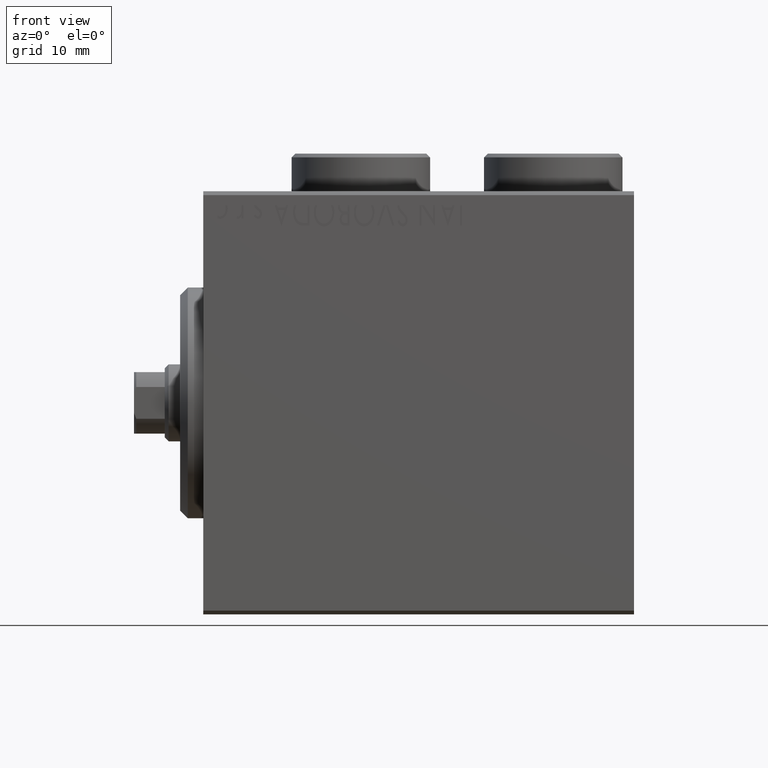
[diagram: clean part render]
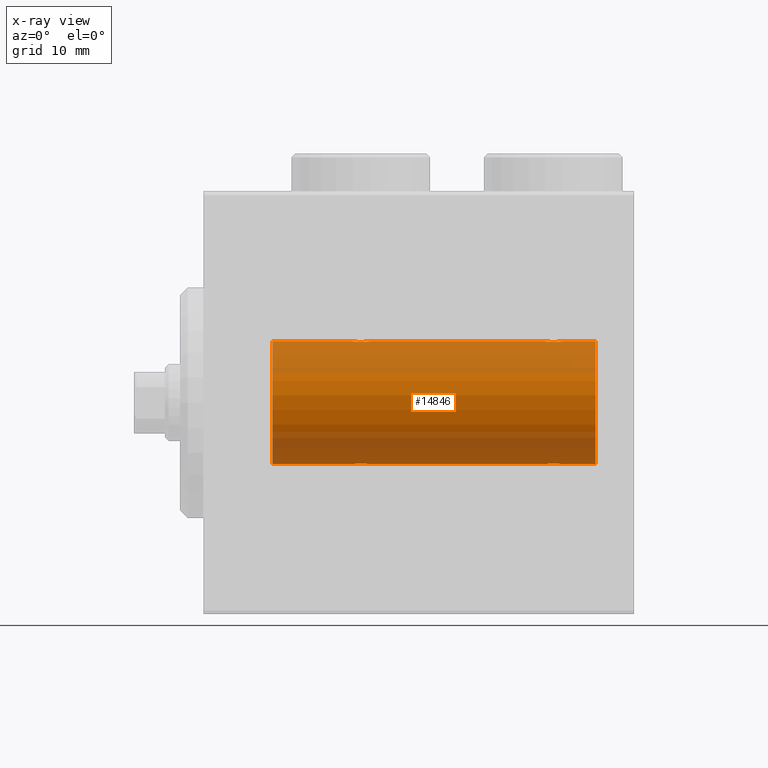
[diagram: x-ray — body ghosted, one internal face saturated and labeled with its STEP entity id]
A machine part, front view, then the same camera in x-ray: the body is ghosted and one INTERNAL B-rep face — a face not visible from any outside direction — is saturated and labeled: STEP entity #14846.
In plain terms, the highlighted cylindrical surface (partial cylindrical patch) has radius 8 mm, axis along (-1, -0, -0).
Its self-contained STEP definition (entity closure, byte-faithful):
#329 = AXIS2_PLACEMENT_3D ( 'NONE', #32023, #21646, #35716 ) ;
#395 = ORIENTED_EDGE ( 'NONE', *, *, #38197, .T. ) ;
#756 = ORIENTED_EDGE ( 'NONE', *, *, #18101, .T. ) ;
#1104 = CARTESIAN_POINT ( 'NONE',  ( 44.50041313324088321, -0.7680324342712147034, 7.963892330120037499 ) ) ;
#1177 = CARTESIAN_POINT ( 'NONE',  ( 21.75000000000000355, -5.238855365914187376E-16, 7.999999999999998224 ) ) ;
#1184 = FACE_OUTER_BOUND ( 'NONE', #5843, .T. ) ;
#2213 = ORIENTED_EDGE ( 'NONE', *, *, #26167, .T. ) ;
#2395 = CARTESIAN_POINT ( 'NONE',  ( 19.40834966532100481, -0.6303134207467991912, -7.976551562999473433 ) ) ;
#2819 = CARTESIAN_POINT ( 'NONE',  ( 45.33559448851095652, -1.250104850332078854, -7.901723728054487417 ) ) ;
#2835 = CARTESIAN_POINT ( 'NONE',  ( 51.00000000000000711, 0.000000000000000000, 7.999999999999998224 ) ) ;
#3040 = CARTESIAN_POINT ( 'NONE',  ( 46.49958686675912389, -0.7680324342712128161, -7.963892330120035723 ) ) ;
#3258 = CARTESIAN_POINT ( 'NONE',  ( 44.25000000000000711, -5.932357478216049125E-15, -7.999999999999998224 ) ) ;
#3297 = CARTESIAN_POINT ( 'NONE',  ( 20.17169333885885862, -1.217212176555599878, 7.907113222863031865 ) ) ;
#3329 = AXIS2_PLACEMENT_3D ( 'NONE', #26654, #5743, #37049 ) ;
#4205 = CARTESIAN_POINT ( 'NONE',  ( 19.25000000000000000, -4.052102368803510290E-23, 7.999999999999998224 ) ) ;
#4667 = VECTOR ( 'NONE', #39493, 1000.000000000000000 ) ;
#4731 = CARTESIAN_POINT ( 'NONE',  ( 46.74999999999999289, 9.797173987957720246E-16, -7.999999999999998224 ) ) ;
#4777 = CARTESIAN_POINT ( 'NONE',  ( 46.12943792732229298, -1.092287957405115639, 7.925333492638530153 ) ) ;
#5006 = CARTESIAN_POINT ( 'NONE',  ( 45.82701716371747125, -1.217515856520235973, 7.907063872927300174 ) ) ;
#5743 = DIRECTION ( 'NONE',  ( -1.000000000000000000, 0.000000000000000000, 0.000000000000000000 ) ) ;
#5843 = EDGE_LOOP ( 'NONE', ( #34942, #29986, #2213, #40958, #38682, #8151, #756, #12341, #395, #11331, #38171, #26855 ) ) ;
#5965 = DIRECTION ( 'NONE',  ( -1.000000000000000000, -0.000000000000000000, -0.000000000000000000 ) ) ;
#6191 = VECTOR ( 'NONE', #27196, 1000.000000000000000 ) ;
#6379 = EDGE_CURVE ( 'NONE', #19560, #33014, #15137, .T. ) ;
#6492 = CARTESIAN_POINT ( 'NONE',  ( 44.25000000000002132, -0.1654128203352934201, -7.999999999999998224 ) ) ;
#6533 = CARTESIAN_POINT ( 'NONE',  ( 19.87056207267771413, -1.092287957405118970, -7.925333492638526600 ) ) ;
#6748 = CARTESIAN_POINT ( 'NONE',  ( 19.73732994206309499, -0.9937204387496718638, 7.938174152191987076 ) ) ;
#6984 = CARTESIAN_POINT ( 'NONE',  ( 21.26815485876451461, -0.9994562523959116263, 7.938165420771274405 ) ) ;
#7436 = CARTESIAN_POINT ( 'NONE',  ( 20.66440551148902571, -1.250104850332075523, 7.901723728054487417 ) ) ;
#8022 = CARTESIAN_POINT ( 'NONE',  ( 44.73732994206308433, -0.9937204387496696434, 7.938174152191987076 ) ) ;
#8151 = ORIENTED_EDGE ( 'NONE', *, *, #6379, .T. ) ;
#9201 = CARTESIAN_POINT ( 'NONE',  ( 51.00000000000000711, 9.797174393178823685E-16, -7.999999999999998224 ) ) ;
#9335 = LINE ( 'NONE', #13914, #28998 ) ;
#9537 = CARTESIAN_POINT ( 'NONE',  ( 20.66599605016009988, -1.249894643705219854, -7.901756981264366431 ) ) ;
#9716 = CARTESIAN_POINT ( 'NONE',  ( 46.59250917855270302, -0.6288424646912637028, -7.976670562295706368 ) ) ;
#10173 = CARTESIAN_POINT ( 'NONE',  ( 44.87056207267771413, -1.092287957405121634, -7.925333492638528377 ) ) ;
#10214 = CARTESIAN_POINT ( 'NONE',  ( 20.33559448851098850, -1.250104850332076634, -7.901723728054487417 ) ) ;
#10479 = VERTEX_POINT ( 'NONE', #11235 ) ;
#10694 = CIRCLE ( 'NONE', #3329, 7.999999999999998224 ) ;
#10891 = CARTESIAN_POINT ( 'NONE',  ( 21.75000000000000355, -5.238855365914187376E-16, 7.999999999999998224 ) ) ;
#11235 = CARTESIAN_POINT ( 'NONE',  ( 44.25000000000000711, -5.932357478216049125E-15, -7.999999999999998224 ) ) ;
#11331 = ORIENTED_EDGE ( 'NONE', *, *, #30730, .F. ) ;
#11691 = CARTESIAN_POINT ( 'NONE',  ( 46.75000000000000711, -0.1654128203352883963, 7.999999999999996447 ) ) ;
#11876 = EDGE_CURVE ( 'NONE', #29878, #20206, #38593, .T. ) ;
#12143 = CARTESIAN_POINT ( 'NONE',  ( 44.87285837165013902, -1.084361243153316945, 7.926301147147065684 ) ) ;
#12314 = CARTESIAN_POINT ( 'NONE',  ( 21.75000000000000355, 9.797173987965608855E-16, -7.999999999999998224 ) ) ;
#12341 = ORIENTED_EDGE ( 'NONE', *, *, #24601, .F. ) ;
#12398 = B_SPLINE_CURVE_WITH_KNOTS ( 'NONE', 3,
 ( #45544, #17665, #21568, #43675, #1104, #25253, #8022, #12143, #33074, #43229, #25478, #22021, #5006, #4777, #36082, #39319, #29160, #19026, #11691, #25699 ),
 .UNSPECIFIED., .F., .F.,
 ( 4, 2, 2, 2, 2, 2, 2, 2, 2, 4 ),
 ( 0.003914068143704962574, 0.004403205918210084668, 0.004892343692715206763, 0.005136912579967760871, 0.005381481467220314979, 0.005870619241725421461, 0.006359757016230529678, 0.006848894790735636159, 0.007338032565240744376, 0.007827170339745850858 ),
 .UNSPECIFIED. ) ;
#13577 = CARTESIAN_POINT ( 'NONE',  ( 19.25000000000000000, -4.052102368803510290E-23, 7.999999999999998224 ) ) ;
#13849 = CARTESIAN_POINT ( 'NONE',  ( 44.50158244334253510, -0.7695044314719126088, -7.963745725343517101 ) ) ;
#13883 = CARTESIAN_POINT ( 'NONE',  ( 19.25000000000000355, -0.1632520343443080724, 8.000000000000000000 ) ) ;
#13914 = CARTESIAN_POINT ( 'NONE',  ( 51.00000000000000711, 0.000000000000000000, 7.999999999999998224 ) ) ;
#14300 = CARTESIAN_POINT ( 'NONE',  ( 46.05544625654727042, -1.122809931695432972, -7.920878051565292566 ) ) ;
#14535 = CYLINDRICAL_SURFACE ( 'NONE', #329, 7.999999999999998224 ) ;
#14846 = ADVANCED_FACE ( 'NONE', ( #1184 ), #14535, .F. ) ;
#15137 = LINE ( 'NONE', #42765, #39049 ) ;
#15503 = EDGE_CURVE ( 'NONE', #16681, #43192, #9335, .T. ) ;
#15742 = CARTESIAN_POINT ( 'NONE',  ( 9.000000000000001776, 0.000000000000000000, 7.999999999999998224 ) ) ;
#16681 = VERTEX_POINT ( 'NONE', #29758 ) ;
#16691 = CARTESIAN_POINT ( 'NONE',  ( 46.75000000000000000, 2.184524186358155277E-16, 7.999999999999998224 ) ) ;
#16845 = CARTESIAN_POINT ( 'NONE',  ( 46.26267005793690146, -0.9937204387496705316, -7.938174152191988853 ) ) ;
#16886 = CARTESIAN_POINT ( 'NONE',  ( 19.28333392022813797, -0.3297258132310537104, -7.994620111903500970 ) ) ;
#17328 = CARTESIAN_POINT ( 'NONE',  ( 20.33400394983990722, -1.249894643705219410, 7.901756981264364654 ) ) ;
#17335 = CARTESIAN_POINT ( 'NONE',  ( 20.82830666114114848, -1.217212176555599434, -7.907113222863026536 ) ) ;
#17415 = CARTESIAN_POINT ( 'NONE',  ( 9.000000000000001776, 0.000000000000000000, 0.000000000000000000 ) ) ;
#17548 = CARTESIAN_POINT ( 'NONE',  ( 21.59165033467900940, -0.6303134207467971928, 7.976551562999473433 ) ) ;
#17665 = CARTESIAN_POINT ( 'NONE',  ( 44.25000000000000000, -0.1632520343443069621, 8.000000000000000000 ) ) ;
#17856 = DIRECTION ( 'NONE',  ( -1.000000000000000000, 0.000000000000000000, 0.000000000000000000 ) ) ;
#17943 = DIRECTION ( 'NONE',  ( -1.000000000000000000, -0.000000000000000000, -0.000000000000000000 ) ) ;
#18101 = EDGE_CURVE ( 'NONE', #33014, #44166, #41604, .T. ) ;
#18235 = CARTESIAN_POINT ( 'NONE',  ( 19.28284287980512346, -0.3279446529214878892, 7.994696267489722175 ) ) ;
#18603 = CARTESIAN_POINT ( 'NONE',  ( 44.25000000000000000, -4.052102368803510290E-23, 7.999999999999998224 ) ) ;
#18967 = CARTESIAN_POINT ( 'NONE',  ( 21.75000000000000355, -0.1632520343443068511, -7.999999999999998224 ) ) ;
#19026 = CARTESIAN_POINT ( 'NONE',  ( 46.71666607977186914, -0.3297258132310492140, 7.994620111903504522 ) ) ;
#19560 = VERTEX_POINT ( 'NONE', #20934 ) ;
#20206 = VERTEX_POINT ( 'NONE', #30590 ) ;
#20435 = CARTESIAN_POINT ( 'NONE',  ( 21.75000000000000355, 9.797173987965608855E-16, -7.999999999999998224 ) ) ;
#20444 = LINE ( 'NONE', #9201, #43033 ) ;
#20509 = CARTESIAN_POINT ( 'NONE',  ( 45.66599605016010344, -1.249894643705221853, -7.901756981264364654 ) ) ;
#20770 = CARTESIAN_POINT ( 'NONE',  ( 19.94455374345276155, -1.122809931695431640, 7.920878051565288125 ) ) ;
#20934 = CARTESIAN_POINT ( 'NONE',  ( 19.25000000000000711, -3.107364149877583097E-15, -7.999999999999998224 ) ) ;
#20999 = CARTESIAN_POINT ( 'NONE',  ( 21.49841755665748622, -0.7695044314719065026, 7.963745725343518878 ) ) ;
#21568 = CARTESIAN_POINT ( 'NONE',  ( 44.28284287980513056, -0.3279446529214851691, 7.994696267489722175 ) ) ;
#21646 = DIRECTION ( 'NONE',  ( -1.000000000000000000, -0.000000000000000000, -0.000000000000000000 ) ) ;
#22021 = CARTESIAN_POINT ( 'NONE',  ( 45.66440551148901505, -1.250104850332072859, 7.901723728054492746 ) ) ;
#22869 = CARTESIAN_POINT ( 'NONE',  ( 21.49958686675913810, -0.7680324342712174790, -7.963892330120039276 ) ) ;
#22928 = CARTESIAN_POINT ( 'NONE',  ( 9.000000000000001776, 9.797174393178823685E-16, -7.999999999999998224 ) ) ;
#23035 = VECTOR ( 'NONE', #17943, 1000.000000000000000 ) ;
#23068 = CARTESIAN_POINT ( 'NONE',  ( 51.00000000000000711, 9.797174393178823685E-16, -7.999999999999998224 ) ) ;
#24035 = VERTEX_POINT ( 'NONE', #20435 ) ;
#24416 = CARTESIAN_POINT ( 'NONE',  ( 44.28333392022813797, -0.3297258132310548762, -7.994620111903502746 ) ) ;
#24448 = CARTESIAN_POINT ( 'NONE',  ( 21.12943792732229298, -1.092287957405117194, 7.925333492638531929 ) ) ;
#24601 = EDGE_CURVE ( 'NONE', #40992, #44166, #24629, .T. ) ;
#24629 = LINE ( 'NONE', #38693, #23035 ) ;
#24664 = AXIS2_PLACEMENT_3D ( 'NONE', #17415, #17856, #35144 ) ;
#25253 = CARTESIAN_POINT ( 'NONE',  ( 44.67312100220858184, -0.9409612394163470173, 7.944680966683011825 ) ) ;
#25478 = CARTESIAN_POINT ( 'NONE',  ( 45.33400394983990367, -1.249894643705215858, 7.901756981264366431 ) ) ;
#25699 = CARTESIAN_POINT ( 'NONE',  ( 46.75000000000000000, 2.184524186358155277E-16, 7.999999999999998224 ) ) ;
#26167 = EDGE_CURVE ( 'NONE', #20206, #10479, #28149, .T. ) ;
#26321 = CARTESIAN_POINT ( 'NONE',  ( 21.59250917855271013, -0.6288424646912625926, -7.976670562295708145 ) ) ;
#26654 = CARTESIAN_POINT ( 'NONE',  ( 51.00000000000000711, 0.000000000000000000, 0.000000000000000000 ) ) ;
#26766 = CARTESIAN_POINT ( 'NONE',  ( 20.17298283628253230, -1.217515856520239970, -7.907063872927298398 ) ) ;
#26855 = ORIENTED_EDGE ( 'NONE', *, *, #15503, .F. ) ;
#27196 = DIRECTION ( 'NONE',  ( -1.000000000000000000, -0.000000000000000000, -0.000000000000000000 ) ) ;
#27859 = CARTESIAN_POINT ( 'NONE',  ( 46.12714162834986098, -1.084361243153318943, -7.926301147147065684 ) ) ;
#28086 = CARTESIAN_POINT ( 'NONE',  ( 44.40834966532099060, -0.6303134207468006345, -7.976551562999471656 ) ) ;
#28149 = B_SPLINE_CURVE_WITH_KNOTS ( 'NONE', 3,
 ( #4731, #45381, #31551, #9716, #3040, #34789, #16845, #27859, #14300, #31777, #20509, #2819, #41250, #10173, #34569, #13849, #28086, #24416, #6492, #3258 ),
 .UNSPECIFIED., .F., .F.,
 ( 4, 2, 2, 2, 2, 2, 2, 2, 2, 4 ),
 ( 0.003914068143704942625, 0.004403205918210042168, 0.004892343692715140843, 0.005136912579967698421, 0.005381481467220255999, 0.005870619241725370287, 0.006359757016230484575, 0.006848894790735598863, 0.007338032565240713151, 0.007827170339745828306 ),
 .UNSPECIFIED. ) ;
#28363 = CARTESIAN_POINT ( 'NONE',  ( 19.40749082144729343, -0.6288424646912649241, 7.976670562295706368 ) ) ;
#28764 = B_SPLINE_CURVE_WITH_KNOTS ( 'NONE', 3,
 ( #4205, #13883, #18235, #28363, #42189, #38515, #6748, #32284, #20770, #3297, #17328, #7436, #41956, #24448, #6984, #20999, #17548, #42421, #31583, #10891 ),
 .UNSPECIFIED., .F., .F.,
 ( 4, 2, 2, 2, 2, 2, 2, 2, 2, 4 ),
 ( 0.003914068143704968646, 0.004403205918210080332, 0.004892343692715191150, 0.005136912579967747861, 0.005381481467220303704, 0.005870619241725416257, 0.006359757016230527943, 0.006848894790735639629, 0.007338032565240751315, 0.007827170339745863001 ),
 .UNSPECIFIED. ) ;
#28998 = VECTOR ( 'NONE', #30940, 1000.000000000000000 ) ;
#29160 = CARTESIAN_POINT ( 'NONE',  ( 46.59165033467900230, -0.6303134207467945282, 7.976551562999473433 ) ) ;
#29758 = CARTESIAN_POINT ( 'NONE',  ( 51.00000000000000711, 0.000000000000000000, 7.999999999999998224 ) ) ;
#29878 = VERTEX_POINT ( 'NONE', #23068 ) ;
#29986 = ORIENTED_EDGE ( 'NONE', *, *, #11876, .T. ) ;
#30590 = CARTESIAN_POINT ( 'NONE',  ( 46.74999999999999289, 9.797173987957720246E-16, -7.999999999999998224 ) ) ;
#30730 = EDGE_CURVE ( 'NONE', #39001, #34794, #34588, .T. ) ;
#30917 = CARTESIAN_POINT ( 'NONE',  ( 21.05544625654724200, -1.122809931695431640, -7.920878051565290789 ) ) ;
#30940 = DIRECTION ( 'NONE',  ( -1.000000000000000000, -0.000000000000000000, -0.000000000000000000 ) ) ;
#31370 = CARTESIAN_POINT ( 'NONE',  ( 19.50158244334252089, -0.7695044314719098333, -7.963745725343515325 ) ) ;
#31551 = CARTESIAN_POINT ( 'NONE',  ( 46.71715712019487654, -0.3279446529214866679, -7.994696267489720398 ) ) ;
#31583 = CARTESIAN_POINT ( 'NONE',  ( 21.75000000000000711, -0.1654128203352884796, 8.000000000000001776 ) ) ;
#31777 = CARTESIAN_POINT ( 'NONE',  ( 45.82830666114114848, -1.217212176555600989, -7.907113222863030089 ) ) ;
#32023 = CARTESIAN_POINT ( 'NONE',  ( 51.00000000000000711, 0.000000000000000000, 0.000000000000000000 ) ) ;
#32284 = CARTESIAN_POINT ( 'NONE',  ( 19.87285837165014613, -1.084361243153319387, 7.926301147147063908 ) ) ;
#32656 = EDGE_CURVE ( 'NONE', #10479, #24035, #20444, .T. ) ;
#32682 = EDGE_CURVE ( 'NONE', #29878, #16681, #10694, .T. ) ;
#32876 = EDGE_CURVE ( 'NONE', #39001, #43192, #12398, .T. ) ;
#33014 = VERTEX_POINT ( 'NONE', #22928 ) ;
#33074 = CARTESIAN_POINT ( 'NONE',  ( 44.94455374345275800, -1.122809931695426311, 7.920878051565289901 ) ) ;
#33933 = CARTESIAN_POINT ( 'NONE',  ( 21.26267005793691212, -0.9937204387496720859, -7.938174152191990629 ) ) ;
#34569 = CARTESIAN_POINT ( 'NONE',  ( 44.73184514123551025, -0.9994562523959168443, -7.938165420771277958 ) ) ;
#34588 = LINE ( 'NONE', #2835, #6191 ) ;
#34789 = CARTESIAN_POINT ( 'NONE',  ( 46.32687899779141816, -0.9409612394163474614, -7.944680966683013601 ) ) ;
#34794 = VERTEX_POINT ( 'NONE', #1177 ) ;
#34942 = ORIENTED_EDGE ( 'NONE', *, *, #32682, .F. ) ;
#35144 = DIRECTION ( 'NONE',  ( 0.000000000000000000, 0.000000000000000000, 1.000000000000000000 ) ) ;
#35296 = B_SPLINE_CURVE_WITH_KNOTS ( 'NONE', 3,
 ( #12314, #18967, #43613, #26321, #22869, #36930, #33933, #41068, #30917, #17335, #9537, #10214, #26766, #6533, #38290, #31370, #2395, #16886, #41521, #44974 ),
 .UNSPECIFIED., .F., .F.,
 ( 4, 2, 2, 2, 2, 2, 2, 2, 2, 4 ),
 ( 0.003914068143704951298, 0.004403205918210062117, 0.004892343692715172936, 0.005136912579967725309, 0.005381481467220276815, 0.005870619241725390236, 0.006359757016230503657, 0.006848894790735617077, 0.007338032565240730498, 0.007827170339745843919 ),
 .UNSPECIFIED. ) ;
#35716 = DIRECTION ( 'NONE',  ( 0.000000000000000000, 0.000000000000000000, 1.000000000000000000 ) ) ;
#36082 = CARTESIAN_POINT ( 'NONE',  ( 46.26815485876451817, -0.9994562523959094058, 7.938165420771274405 ) ) ;
#36930 = CARTESIAN_POINT ( 'NONE',  ( 21.32687899779140750, -0.9409612394163509030, -7.944680966683015377 ) ) ;
#37049 = DIRECTION ( 'NONE',  ( 0.000000000000000000, 0.000000000000000000, 1.000000000000000000 ) ) ;
#38171 = ORIENTED_EDGE ( 'NONE', *, *, #32876, .T. ) ;
#38197 = EDGE_CURVE ( 'NONE', #40992, #34794, #28764, .T. ) ;
#38290 = CARTESIAN_POINT ( 'NONE',  ( 19.73184514123549249, -0.9994562523959139577, -7.938165420771276182 ) ) ;
#38515 = CARTESIAN_POINT ( 'NONE',  ( 19.67312100220859605, -0.9409612394163516802, 7.944680966683013601 ) ) ;
#38593 = LINE ( 'NONE', #42269, #4667 ) ;
#38682 = ORIENTED_EDGE ( 'NONE', *, *, #38865, .T. ) ;
#38693 = CARTESIAN_POINT ( 'NONE',  ( 51.00000000000000711, 0.000000000000000000, 7.999999999999998224 ) ) ;
#38865 = EDGE_CURVE ( 'NONE', #24035, #19560, #35296, .T. ) ;
#39001 = VERTEX_POINT ( 'NONE', #18603 ) ;
#39049 = VECTOR ( 'NONE', #43671, 1000.000000000000000 ) ;
#39319 = CARTESIAN_POINT ( 'NONE',  ( 46.49841755665749332, -0.7695044314719045042, 7.963745725343520654 ) ) ;
#39493 = DIRECTION ( 'NONE',  ( -1.000000000000000000, -0.000000000000000000, -0.000000000000000000 ) ) ;
#40958 = ORIENTED_EDGE ( 'NONE', *, *, #32656, .T. ) ;
#40992 = VERTEX_POINT ( 'NONE', #13577 ) ;
#41068 = CARTESIAN_POINT ( 'NONE',  ( 21.12714162834985387, -1.084361243153318721, -7.926301147147063908 ) ) ;
#41250 = CARTESIAN_POINT ( 'NONE',  ( 45.17298283628253586, -1.217515856520241968, -7.907063872927295733 ) ) ;
#41521 = CARTESIAN_POINT ( 'NONE',  ( 19.25000000000000711, -0.1654128203352910609, -7.999999999999998224 ) ) ;
#41604 = CIRCLE ( 'NONE', #24664, 7.999999999999998224 ) ;
#41956 = CARTESIAN_POINT ( 'NONE',  ( 20.82701716371747480, -1.217515856520238637, 7.907063872927298398 ) ) ;
#42189 = CARTESIAN_POINT ( 'NONE',  ( 19.50041313324087611, -0.7680324342712183672, 7.963892330120039276 ) ) ;
#42269 = CARTESIAN_POINT ( 'NONE',  ( 51.00000000000000711, 9.797174393178823685E-16, -7.999999999999998224 ) ) ;
#42421 = CARTESIAN_POINT ( 'NONE',  ( 21.71666607977186914, -0.3297258132310516010, 7.994620111903504522 ) ) ;
#42765 = CARTESIAN_POINT ( 'NONE',  ( 51.00000000000000711, 9.797174393178823685E-16, -7.999999999999998224 ) ) ;
#43033 = VECTOR ( 'NONE', #5965, 1000.000000000000000 ) ;
#43192 = VERTEX_POINT ( 'NONE', #16691 ) ;
#43229 = CARTESIAN_POINT ( 'NONE',  ( 45.17169333885885152, -1.217212176555594771, 7.907113222863028312 ) ) ;
#43613 = CARTESIAN_POINT ( 'NONE',  ( 21.71715712019488009, -0.3279446529214856687, -7.994696267489723951 ) ) ;
#43671 = DIRECTION ( 'NONE',  ( -1.000000000000000000, -0.000000000000000000, -0.000000000000000000 ) ) ;
#43675 = CARTESIAN_POINT ( 'NONE',  ( 44.40749082144728277, -0.6288424646912613714, 7.976670562295706368 ) ) ;
#44166 = VERTEX_POINT ( 'NONE', #15742 ) ;
#44974 = CARTESIAN_POINT ( 'NONE',  ( 19.25000000000000711, -3.107364149877583097E-15, -7.999999999999998224 ) ) ;
#45381 = CARTESIAN_POINT ( 'NONE',  ( 46.75000000000000000, -0.1632520343443067401, -8.000000000000000000 ) ) ;
#45544 = CARTESIAN_POINT ( 'NONE',  ( 44.25000000000000000, -4.052102368803510290E-23, 7.999999999999998224 ) ) ;